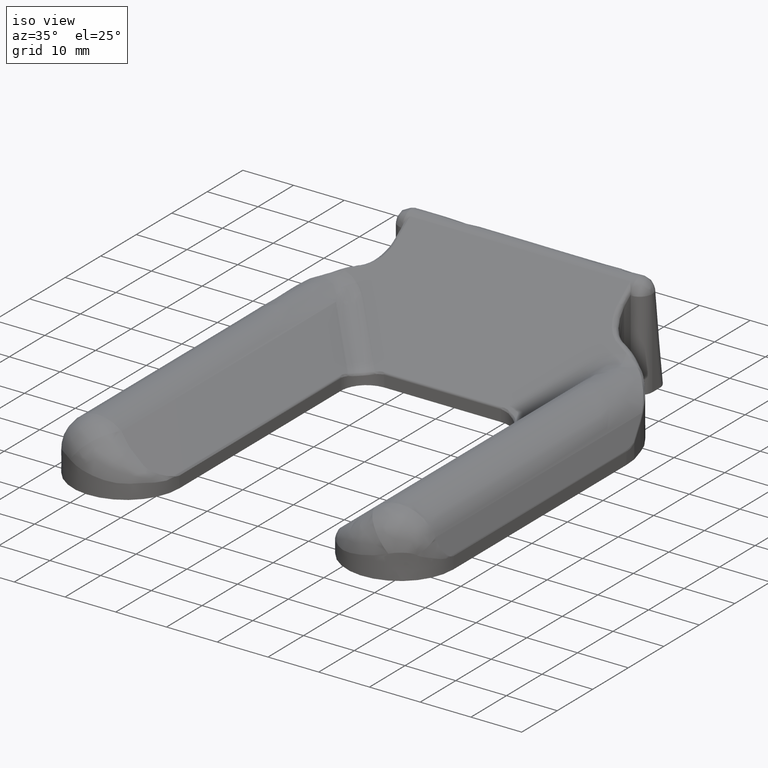
[diagram: clean part render]
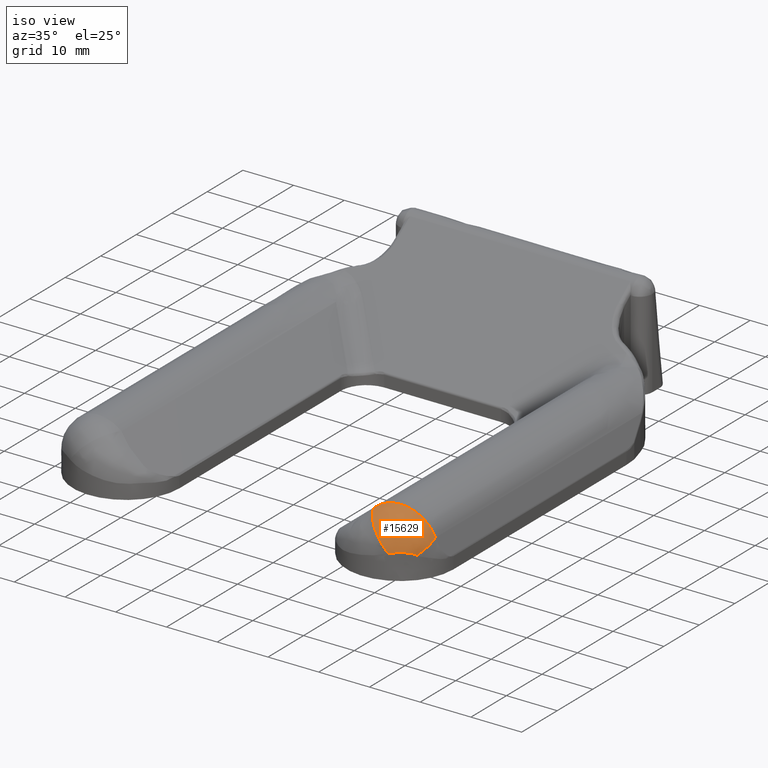
[diagram: same view with one face highlighted and labeled with its STEP entity id]
A machine part, iso view. The second image highlights one B-rep face of the part: STEP entity #15629.
In plain terms, the highlighted face is a freeform B-spline surface patch.
Its self-contained STEP definition (entity closure, byte-faithful):
#3473=CARTESIAN_POINT('',(25.080732248594199,-82.600092383999495,9.442037946899319));
#3474=VERTEX_POINT('',#3473);
#5366=CARTESIAN_POINT('',(36.049751690212993,-81.510677089458994,6.425722288404909));
#5367=VERTEX_POINT('',#5366);
#5368=CARTESIAN_POINT('',(25.080732248594199,-82.600092383999495,9.442037946899319));
#5369=CARTESIAN_POINT('',(25.182320122897568,-82.593547884013191,9.521577560484030));
#5370=CARTESIAN_POINT('',(25.384716749942530,-82.580509076654423,9.680046763786057));
#5371=CARTESIAN_POINT('',(25.703063567011171,-82.560187455576809,9.895228548401855));
#5372=CARTESIAN_POINT('',(26.029213233021050,-82.539399902357843,10.092369264373099));
#5373=CARTESIAN_POINT('',(26.363149967252010,-82.518087573348083,10.269812423810940));
#5374=CARTESIAN_POINT('',(26.703353049343491,-82.496266053718671,10.427865619635019));
#5375=CARTESIAN_POINT('',(27.048727414326450,-82.473931217265203,10.566408458425551));
#5376=CARTESIAN_POINT('',(27.398097274953599,-82.451084157627946,10.685521896696550));
#5377=CARTESIAN_POINT('',(27.750344701535980,-82.427724586323563,10.785317248896710));
#5378=CARTESIAN_POINT('',(28.104377001783231,-82.403852580798315,10.865976975678000));
#5379=CARTESIAN_POINT('',(28.459139021498810,-82.379468121786957,10.927739280755400));
#5380=CARTESIAN_POINT('',(28.813613150887381,-82.354571215148468,10.970897498268529));
#5381=CARTESIAN_POINT('',(29.166822187289650,-82.329161861979017,10.995795510114670));
#5382=CARTESIAN_POINT('',(29.517831073073420,-82.303240057822833,11.002824176570780));
#5383=CARTESIAN_POINT('',(29.865748501938722,-82.276805824938350,10.992417525625060));
#5384=CARTESIAN_POINT('',(30.209728408965191,-82.249859085633616,10.965048914167919));
#5385=CARTESIAN_POINT('',(30.548970375873569,-82.222400131043202,10.921227653469399));
#5386=CARTESIAN_POINT('',(30.882722827121640,-82.194427893465502,10.861494048914089));
#5387=CARTESIAN_POINT('',(31.210274727381609,-82.165946311106183,10.786420563111029));
#5388=CARTESIAN_POINT('',(31.530988495168440,-82.136940883203039,10.696590748811900));
#5389=CARTESIAN_POINT('',(32.142543404329622,-82.079384702587049,10.493650768536220));
#5390=CARTESIAN_POINT('',(33.087708335252678,-81.979605839486169,10.054898004739940));
#5391=CARTESIAN_POINT('',(34.132487522371150,-81.844695805593517,9.287119899657858));
#5392=CARTESIAN_POINT('',(34.934048499169563,-81.721271483170568,8.430709830904899));
#5393=CARTESIAN_POINT('',(35.458074606296542,-81.630504080305016,7.677236260675863));
#5394=CARTESIAN_POINT('',(35.814510808137669,-81.560123038082267,7.017604604244530));
#5395=CARTESIAN_POINT('',(35.978254400266202,-81.525705887181388,6.605614305902336));
#5396=CARTESIAN_POINT('',(36.049751547844721,-81.510677945406115,6.425722160316780));
#5397=B_SPLINE_CURVE_WITH_KNOTS('',3,(#5368,#5369,#5370,#5371,#5372,#5373,#5374,#5375,#5376,#5377,#5378,#5379,#5380,#5381,#5382,#5383,#5384,#5385,#5386,#5387,#5388,#5389,#5390,#5391,#5392,#5393,#5394,#5395,#5396),.UNSPECIFIED.,.F.,.U.,(4,1,1,1,1,1,1,1,1,1,1,1,1,1,1,1,1,1,1,1,1,1,1,1,1,1,4),(0.0,0.029091245626322,0.057959377846734,0.086604483049567,0.115026649698732,0.143225968398196,0.171202531958985,0.198956435468765,0.226487776364203,0.253796654506159,0.280883172257898,0.307747434566452,0.334389549047251,0.360809626072233,0.387007778861562,0.412984123579142,0.438738779432121,0.464271868774578,0.489583517215587,0.514673853731909,0.539543010785521,0.635266412127378,0.749073333609461,0.830821818625757,0.899896579095204,0.956290375550654,0.999999451779539),.UNSPECIFIED.);
#5398=EDGE_CURVE('',#3474,#5367,#5397,.T.);
#15087=CARTESIAN_POINT('',(31.327212082865199,-88.066882229331796,4.777433992414270));
#15088=VERTEX_POINT('',#15087);
#15121=CARTESIAN_POINT('',(31.327212082865199,-88.066882229331796,4.777433992414270));
#15122=CARTESIAN_POINT('',(27.098168053854952,-89.979728021997062,11.074196544766897));
#15123=CARTESIAN_POINT('',(25.080732248595751,-82.600092383999495,9.442037946900580));
#15131=(BOUNDED_CURVE()B_SPLINE_CURVE(2,(#15121,#15122,#15123),.UNSPECIFIED.,.F.,.U.)CURVE()GEOMETRIC_REPRESENTATION_ITEM()QUASI_UNIFORM_CURVE()RATIONAL_B_SPLINE_CURVE((1.0,0.608602499896895,1.0))REPRESENTATION_ITEM(''));
#15132=EDGE_CURVE('',#15088,#3474,#15131,.T.);
#15138=CARTESIAN_POINT('',(24.900612459717205,-82.519813354139387,9.295451953826367));
#15139=CARTESIAN_POINT('',(24.906343791707954,-82.542148250405702,9.300377142170817));
#15140=CARTESIAN_POINT('',(24.917943058089485,-82.587351947385955,9.310345864635284));
#15141=CARTESIAN_POINT('',(25.245591795394834,-83.863921556800875,9.591756304334298));
#15142=CARTESIAN_POINT('',(26.256465998461444,-85.620741494030170,9.326241974182622));
#15143=CARTESIAN_POINT('',(27.129028593746938,-86.704691539668005,8.872309277901612));
#15144=CARTESIAN_POINT('',(27.746885970810045,-87.237855135687155,8.429078643711426));
#15145=CARTESIAN_POINT('',(27.997942411733451,-87.433217376370351,8.237919989575905));
#15146=CARTESIAN_POINT('',(28.251456204499480,-87.609662467793200,8.034065409587020));
#15147=CARTESIAN_POINT('',(28.505956187262505,-87.766398620935163,7.818818582623349));
#15148=CARTESIAN_POINT('',(29.133971165285256,-88.103816182685122,7.262019134863515));
#15149=CARTESIAN_POINT('',(30.529035584538967,-88.423025891063588,5.801518943823793));
#15150=CARTESIAN_POINT('',(31.289295590297797,-88.084711308596710,4.739388026980684));
#15151=CARTESIAN_POINT('',(31.316777096993029,-88.072447295727855,4.700976154892571));
#15152=CARTESIAN_POINT('',(31.330035548427499,-88.066525601721864,4.682441780559144));
#15153=CARTESIAN_POINT('',(24.926536007827455,-82.518223028676857,9.316574797961843));
#15154=CARTESIAN_POINT('',(24.932323747256174,-82.540533796772280,9.321496876014255));
#15155=CARTESIAN_POINT('',(24.944037239234149,-82.585688376888484,9.331459038142391));
#15156=CARTESIAN_POINT('',(25.274841400586439,-83.860714752606128,9.612691816390507));
#15157=CARTESIAN_POINT('',(26.286337075867710,-85.615514239918397,9.345014520458989));
#15158=CARTESIAN_POINT('',(27.157594969120581,-86.698325984398522,8.888968146025690));
#15159=CARTESIAN_POINT('',(27.773597939936334,-87.231130401079824,8.444091913809148));
#15160=CARTESIAN_POINT('',(28.023820774487469,-87.426392051559333,8.252248422559283));
#15161=CARTESIAN_POINT('',(28.276416349230072,-87.602780919511403,8.047684667938992));
#15162=CARTESIAN_POINT('',(28.529921604187113,-87.759506109392504,7.831706938108007));
#15163=CARTESIAN_POINT('',(29.155318631080725,-88.097013246527510,7.273046000146896));
#15164=CARTESIAN_POINT('',(30.543192223179808,-88.417417075402653,5.807836693715148));
#15165=CARTESIAN_POINT('',(31.297898691709563,-88.080743931143118,4.742349278995343));
#15166=CARTESIAN_POINT('',(31.325184994803330,-88.068542746454980,4.703811288991287));
#15167=CARTESIAN_POINT('',(31.338349303315930,-88.062651247206176,4.685215942058669));
#15168=CARTESIAN_POINT('',(24.952459909691019,-82.516632676219757,9.337697590692768));
#15169=CARTESIAN_POINT('',(24.958303764145001,-82.538919322948516,9.342616801900917));
#15170=CARTESIAN_POINT('',(24.970130533963655,-82.584024801477014,9.352573436702834));
#15171=CARTESIAN_POINT('',(25.304084523599496,-83.857508699302784,9.633622415907402));
#15172=CARTESIAN_POINT('',(26.316194791226337,-85.610289319599985,9.363778946578773));
#15173=CARTESIAN_POINT('',(27.186146446304232,-86.691963801529596,8.905618352542428));
#15174=CARTESIAN_POINT('',(27.800295943618881,-87.224409147261838,8.459097365635410));
#15175=CARTESIAN_POINT('',(28.049685797823233,-87.419570092609789,8.266569310527935));
#15176=CARTESIAN_POINT('',(28.301363796227744,-87.595902581123397,8.061296924766799));
#15177=CARTESIAN_POINT('',(28.553875274239015,-87.752617065989384,7.844588953868757));
#15178=CARTESIAN_POINT('',(29.176656285799897,-88.090212598924438,7.284068027207704));
#15179=CARTESIAN_POINT('',(30.557348496681332,-88.411816158968833,5.814152999458318));
#15180=CARTESIAN_POINT('',(31.306495750633015,-88.076762908831185,4.745310555699231));
#15181=CARTESIAN_POINT('',(31.333587422378077,-88.064625664894791,4.706646470169397));
#15182=CARTESIAN_POINT('',(31.346657963455090,-88.058765117118767,4.687990160561355));
#15183=CARTESIAN_POINT('',(25.004315887926566,-82.513451858635989,9.379937382865082));
#15184=CARTESIAN_POINT('',(25.010272422835481,-82.535690280534595,9.384849257303420));
#15185=CARTESIAN_POINT('',(25.022328188460911,-82.580697590561300,9.394789273819249));
#15186=CARTESIAN_POINT('',(25.362545529485303,-83.851098789041203,9.675473423597872));
#15187=CARTESIAN_POINT('',(26.375871020814532,-85.599846347265597,9.401282378998493));
#15188=CARTESIAN_POINT('',(27.243204560192623,-86.679249236996540,8.938892772612963));
#15189=CARTESIAN_POINT('',(27.853650179413918,-87.210977198230509,8.489084802286156));
#15190=CARTESIAN_POINT('',(28.101375714956447,-87.405936501286646,8.295188803793257));
#15191=CARTESIAN_POINT('',(28.351220692267244,-87.582156041687924,8.088500683393821));
#15192=CARTESIAN_POINT('',(28.601747240484290,-87.738849180796706,7.870334078877840));
#15193=CARTESIAN_POINT('',(29.219302091124909,-88.076617728797828,7.306097376725970));
#15194=CARTESIAN_POINT('',(30.585660955420444,-88.400639304915899,5.826781123833682));
#15195=CARTESIAN_POINT('',(31.323671967676923,-88.068761972151492,4.751233175882634));
#15196=CARTESIAN_POINT('',(31.350375213134690,-88.056753764340812,4.712316968013173));
#15197=CARTESIAN_POINT('',(31.363258517363441,-88.050955474159863,4.693538764677878));
#15198=CARTESIAN_POINT('',(25.030234434991804,-82.511861455307084,9.401066510117639));
#15199=CARTESIAN_POINT('',(25.036245425252044,-82.534075777410365,9.405977612683310));
#15200=CARTESIAN_POINT('',(25.048411962686551,-82.579034166723972,9.415913721962095));
#15201=CARTESIAN_POINT('',(25.391772982230819,-83.847895026299639,9.696386192330113));
#15202=CARTESIAN_POINT('',(26.405688204381089,-85.594628495382054,9.420023060814188));
#15203=CARTESIAN_POINT('',(27.271711493015854,-86.672897308911772,8.955517073222271));
#15204=CARTESIAN_POINT('',(27.880306357182736,-87.204266486682158,8.504066899199568));
#15205=CARTESIAN_POINT('',(28.127200831022634,-87.399124854491745,8.309487169596171));
#15206=CARTESIAN_POINT('',(28.376130210349579,-87.575287638895972,8.102092022708700));
#15207=CARTESIAN_POINT('',(28.625665843646232,-87.731970742744011,7.883197074384456));
#15208=CARTESIAN_POINT('',(29.240611075987029,-88.069825558750978,7.317104961192531));
#15209=CARTESIAN_POINT('',(30.599810728281643,-88.395050784188030,5.833093192308833));
#15210=CARTESIAN_POINT('',(31.332247822151633,-88.064709178715248,4.754194687479560));
#15211=CARTESIAN_POINT('',(31.358771163979338,-88.052819897289311,4.715152269228239));
#15212=CARTESIAN_POINT('',(31.371561514684842,-88.047054196204613,4.696313133496052));
#15213=CARTESIAN_POINT('',(25.704960686607894,-82.470498409837418,9.949923860290511));
#15214=CARTESIAN_POINT('',(25.712454598265555,-82.492088167558848,9.954600970197852));
#15215=CARTESIAN_POINT('',(25.727270642583949,-82.535776021735415,9.964513891785817));
#15216=CARTESIAN_POINT('',(26.148815339738924,-83.764853058274966,10.238820540072219));
#15217=CARTESIAN_POINT('',(27.176393333480039,-85.459760652863750,9.904304394395343));
#15218=CARTESIAN_POINT('',(28.007694385433826,-86.508879795505010,9.384724605663370));
#15219=CARTESIAN_POINT('',(28.568524153247587,-87.031009319063941,8.890873515738740));
#15220=CARTESIAN_POINT('',(28.793993874244304,-87.223250874475582,8.678683839568771));
#15221=CARTESIAN_POINT('',(29.019377051111945,-87.397933761430068,8.453076648120701));
#15222=CARTESIAN_POINT('',(29.243436747324715,-87.554293054947308,8.215436865248433));
#15223=CARTESIAN_POINT('',(29.791304862106010,-87.894163556091470,7.601588912210776));
#15224=CARTESIAN_POINT('',(30.966935328583670,-88.250968493480570,5.996681471153560));
#15225=CARTESIAN_POINT('',(31.554980253888992,-87.959522734792543,4.831194597045232));
#15226=CARTESIAN_POINT('',(31.576465701098670,-87.949229003637470,4.788883972641268));
#15227=CARTESIAN_POINT('',(31.586819478705813,-87.944228733471775,4.768464411492672));
#15228=CARTESIAN_POINT('',(26.341700089324657,-82.432299648648979,10.288317702259910));
#15229=CARTESIAN_POINT('',(26.350258273422156,-82.453201873952054,10.292699932756673));
#15230=CARTESIAN_POINT('',(26.367543397482564,-82.495490744346540,10.301947649774389));
#15231=CARTESIAN_POINT('',(26.855414023578845,-83.680874215224179,10.546234712204670));
#15232=CARTESIAN_POINT('',(27.885628625982235,-85.319477582734365,10.154747966638524));
#15233=CARTESIAN_POINT('',(28.679516466065806,-86.337207762991781,9.595816925367451));
#15234=CARTESIAN_POINT('',(29.194334593951112,-86.849501179526371,9.078323374408544));
#15235=CARTESIAN_POINT('',(29.399450587920086,-87.039008506245764,8.856811715656351));
#15236=CARTESIAN_POINT('',(29.602678425093440,-87.212183395156828,8.622023258463669));
#15237=CARTESIAN_POINT('',(29.802982518622954,-87.368303147561107,8.375323201817851));
#15238=CARTESIAN_POINT('',(30.288846376978427,-87.710948677923113,7.739087618823327));
#15239=CARTESIAN_POINT('',(31.296584157372585,-88.100065203656357,6.081811882382737));
#15240=CARTESIAN_POINT('',(31.760238142386235,-87.861699266424580,4.881029514731285));
#15241=CARTESIAN_POINT('',(31.777017502119964,-87.852783309902136,4.837279238298924));
#15242=CARTESIAN_POINT('',(31.785140487359559,-87.848525684404876,4.816160837916826));
#15243=CARTESIAN_POINT('',(27.573072294257400,-82.356788987029987,10.766808608553383));
#15244=CARTESIAN_POINT('',(27.583396928879459,-82.376359602797464,10.769699531987960));
#15245=CARTESIAN_POINT('',(27.604400304187962,-82.415934294415436,10.774463523134905));
#15246=CARTESIAN_POINT('',(28.184916098167552,-83.516679147753720,10.938069495865538));
#15247=CARTESIAN_POINT('',(29.187326604658089,-85.044699009177265,10.438980938170898));
#15248=CARTESIAN_POINT('',(29.897294056690257,-85.999796896948951,9.818714215311216));
#15249=CARTESIAN_POINT('',(30.324182516023601,-86.491510195168473,9.272681608617944));
#15250=CARTESIAN_POINT('',(30.491157675483802,-86.675052547584798,9.040675203403270));
#15251=CARTESIAN_POINT('',(30.653571752770347,-86.844635512480082,8.796252960999727));
#15252=CARTESIAN_POINT('',(30.810693202798323,-86.999583995568656,8.540699740227069));
#15253=CARTESIAN_POINT('',(31.185015894235939,-87.345728098060405,7.883652723331699));
#15254=CARTESIAN_POINT('',(31.901242443934301,-87.797283849653127,6.184549688379558));
#15255=CARTESIAN_POINT('',(32.151267186751276,-87.652924748852300,4.958496495432777));
#15256=CARTESIAN_POINT('',(32.160421722416757,-87.647579942582794,4.913472600126536));
#15257=CARTESIAN_POINT('',(32.164843357961729,-87.644999194113041,4.891730447858027));
#15258=CARTESIAN_POINT('',(28.169544575758472,-82.319479966557594,10.899383986966404));
#15259=CARTESIAN_POINT('',(28.180417696388403,-82.338381429513674,10.901421906203819));
#15260=CARTESIAN_POINT('',(28.202307893018798,-82.376600156544313,10.906323393968949));
#15261=CARTESIAN_POINT('',(28.811155126561804,-83.434995313506377,11.018793701857868));
#15262=CARTESIAN_POINT('',(29.785263401758566,-84.907623063905319,10.467981144511205));
#15263=CARTESIAN_POINT('',(30.449561149777097,-85.831201596988819,9.826342603357359));
#15264=CARTESIAN_POINT('',(30.834455366469655,-86.312196761639768,9.275507076273327));
#15265=CARTESIAN_POINT('',(30.983556022685004,-86.492553907241131,9.042376904269384));
#15266=CARTESIAN_POINT('',(31.127142705307786,-86.660102701992713,8.797561036836267));
#15267=CARTESIAN_POINT('',(31.264615913713232,-86.814201648428508,8.542274311546610));
#15268=CARTESIAN_POINT('',(31.588739516379970,-87.161391279254062,7.887013925633023));
#15269=CARTESIAN_POINT('',(32.177666457318892,-87.642030150170072,6.199519551715391));
#15270=CARTESIAN_POINT('',(32.337872694719472,-87.544343468713762,4.985151188318971));
#15271=CARTESIAN_POINT('',(32.343813423136147,-87.540800367306630,4.940368292458351));
#15272=CARTESIAN_POINT('',(32.346679745173979,-87.539083524441651,4.918737658284358));
#15273=CARTESIAN_POINT('',(29.876295450907971,-82.206823771490775,11.080653070488735));
#15274=CARTESIAN_POINT('',(29.888073403357204,-82.223722868132342,11.079774562022374));
#15275=CARTESIAN_POINT('',(29.911969992532487,-82.257868195500464,11.077980446000346));
#15276=CARTESIAN_POINT('',(30.562282304859860,-83.191536125826914,11.034632103979419));
#15277=CARTESIAN_POINT('',(31.423963314613115,-84.503456637336384,10.359709810007551));
#15278=CARTESIAN_POINT('',(31.949850580576669,-85.335800944983390,9.677649519527227));
#15279=CARTESIAN_POINT('',(32.218553505534018,-85.784748692763301,9.130638838110260));
#15280=CARTESIAN_POINT('',(32.318890608416993,-85.955333142600821,8.901605888547069));
#15281=CARTESIAN_POINT('',(32.411724088394962,-86.116304141283990,8.663276952016084));
#15282=CARTESIAN_POINT('',(32.496753468277348,-86.267114237713045,8.416629823124302));
#15283=CARTESIAN_POINT('',(32.687801668311032,-86.614987172306314,7.786579752699677));
#15284=CARTESIAN_POINT('',(32.945491450964759,-87.173725321400624,6.183476501407204));
#15285=CARTESIAN_POINT('',(32.876623173174728,-87.211541423396426,5.039535542860214));
#15286=CARTESIAN_POINT('',(32.874040225592246,-87.212933455830637,4.996806377185763));
#15287=CARTESIAN_POINT('',(32.872792761748848,-87.213608058794023,4.976153674746530));
#15288=CARTESIAN_POINT('',(30.900542963451059,-82.130040178464711,10.920701176634639));
#15289=CARTESIAN_POINT('',(30.911784138129235,-82.145796110317718,10.918209286311477));
#15290=CARTESIAN_POINT('',(30.934387034441787,-82.177615157641739,10.913009042969529));
#15291=CARTESIAN_POINT('',(31.550849565590568,-83.040149906462773,10.776309369901313));
#15292=CARTESIAN_POINT('',(32.299346110051950,-84.257094491964509,10.046789394195699));
#15293=CARTESIAN_POINT('',(32.728392668292287,-85.033762467904680,9.368559511383896));
#15294=CARTESIAN_POINT('',(32.930678285405712,-85.461100104994429,8.846255510200324));
#15295=CARTESIAN_POINT('',(33.004203142002737,-85.624688768520315,8.629075103417055));
#15296=CARTESIAN_POINT('',(33.070121206103693,-85.780406829155226,8.404391203432144));
#15297=CARTESIAN_POINT('',(33.128261825469963,-85.927786473958335,8.173001985774606));
#15298=CARTESIAN_POINT('',(33.253036438098604,-86.272060236759202,7.583778755486196));
#15299=CARTESIAN_POINT('',(33.362738102533996,-86.867502352059915,6.096665789267175));
#15300=CARTESIAN_POINT('',(33.206677297284038,-86.978178887540039,5.042045019448043));
#15301=CARTESIAN_POINT('',(33.200799138533256,-86.982354052023538,5.002308361295848));
#15302=CARTESIAN_POINT('',(33.197956457605528,-86.984372537682233,4.983093033111985));
#15303=CARTESIAN_POINT('',(32.703706122779984,-81.965477402794050,10.286851513976728));
#15304=CARTESIAN_POINT('',(32.713101129941727,-81.979172497765049,10.281829900130992));
#15305=CARTESIAN_POINT('',(32.732466485946588,-82.006813130954399,10.272613358204566));
#15306=CARTESIAN_POINT('',(33.237389281722386,-82.743961675777101,10.002681983369250));
#15307=CARTESIAN_POINT('',(33.753231119532892,-83.794572687101024,9.246577494904175));
#15308=CARTESIAN_POINT('',(34.009601505446206,-84.472957292489255,8.617578150660123));
#15309=CARTESIAN_POINT('',(34.103042173692877,-84.859721158524266,8.162822206353553));
#15310=CARTESIAN_POINT('',(34.133433203121484,-85.009684393027925,7.975825920687654));
#15311=CARTESIAN_POINT('',(34.156773186188602,-85.154541487249872,7.784211051952750));
#15312=CARTESIAN_POINT('',(34.173040976396464,-85.293954616442846,7.588478671137906));
#15313=CARTESIAN_POINT('',(34.195948741821148,-85.626458984039701,7.092621003055822));
#15314=CARTESIAN_POINT('',(34.088006521381338,-86.267789478111951,5.858013809357732));
#15315=CARTESIAN_POINT('',(33.816164367060210,-86.496252264940253,4.991410554839074));
#15316=CARTESIAN_POINT('',(33.805754636388194,-86.504999022795687,4.958227677347592));
#15317=CARTESIAN_POINT('',(33.800716525436592,-86.509232482895897,4.942167477431657));
#15318=CARTESIAN_POINT('',(33.485988839732826,-81.877453734102090,9.817159927698192));
#15319=CARTESIAN_POINT('',(33.493863660867760,-81.890282704240633,9.811302559961995));
#15320=CARTESIAN_POINT('',(33.509517575321091,-81.916156444878041,9.799145043654525));
#15321=CARTESIAN_POINT('',(33.933623529200794,-82.601251511061136,9.490603307308584));
#15322=CARTESIAN_POINT('',(34.332745452248346,-83.581107670498184,8.760340409645739));
#15323=CARTESIAN_POINT('',(34.510682782657788,-84.216668863724436,8.174845214464359));
#15324=CARTESIAN_POINT('',(34.560411563697983,-84.584277858859338,7.762386223760120));
#15325=CARTESIAN_POINT('',(34.573960565571305,-84.727544321224215,7.593550513082849));
#15326=CARTESIAN_POINT('',(34.581167932638706,-84.866737041109459,7.421247570303904));
#15327=CARTESIAN_POINT('',(34.582043739356024,-85.001577587646679,7.245854508704506));
#15328=CARTESIAN_POINT('',(34.568558328412344,-85.325780941351425,6.802500742820515));
#15329=CARTESIAN_POINT('',(34.392382919628865,-85.976749010537333,5.705182602066199));
#15330=CARTESIAN_POINT('',(34.096020342357917,-86.247716833886486,4.938572898666857));
#15331=CARTESIAN_POINT('',(34.084587485209866,-86.258171486870339,4.908997868043240));
#15332=CARTESIAN_POINT('',(34.079051854120237,-86.263233437737625,4.894678015018792));
#15333=CARTESIAN_POINT('',(34.533153842315478,-81.732794014361559,8.870607331087836));
#15334=CARTESIAN_POINT('',(34.538848942519948,-81.744464127718985,8.864649674721866));
#15335=CARTESIAN_POINT('',(34.551202650098460,-81.767991331232508,8.853691176605008));
#15336=CARTESIAN_POINT('',(34.850513804011541,-82.384467458221124,8.537094388208939));
#15337=CARTESIAN_POINT('',(35.076155770076440,-83.270694082188285,7.888547005620120));
#15338=CARTESIAN_POINT('',(35.149964631645311,-83.849055458791284,7.396087933112608));
#15339=CARTESIAN_POINT('',(35.144396565284971,-84.189953193034611,7.059488146155715));
#15340=CARTESIAN_POINT('',(35.136971194026067,-84.323682704006501,6.922497438768590));
#15341=CARTESIAN_POINT('',(35.124363219630666,-84.454571856083390,6.783373217144225));
#15342=CARTESIAN_POINT('',(35.106612299820952,-84.582419146800149,6.642347027971836));
#15343=CARTESIAN_POINT('',(35.049687018408122,-84.892951068360262,6.286760213971377));
#15344=CARTESIAN_POINT('',(34.797776875798228,-85.547661627188575,5.412363782584182));
#15345=CARTESIAN_POINT('',(34.483256200622328,-85.867766365091668,4.803873169518424));
#15346=CARTESIAN_POINT('',(34.470996071068448,-85.880243518548752,4.780154796581117));
#15347=CARTESIAN_POINT('',(34.465056583262871,-85.886288320423390,4.768664088437930));
#15348=CARTESIAN_POINT('',(34.860765050482165,-81.682488047779870,8.512691273793742));
#15349=CARTESIAN_POINT('',(34.865619353956966,-81.693791062430904,8.506780765915735));
#15350=CARTESIAN_POINT('',(34.875367159223764,-81.716572472885375,8.494842248035155));
#15351=CARTESIAN_POINT('',(35.130976545193803,-82.311574131754256,8.183774719469618));
#15352=CARTESIAN_POINT('',(35.301753992154985,-83.168659023617550,7.573568608791584));
#15353=CARTESIAN_POINT('',(35.342975642079303,-83.729200118283146,7.116416786212507));
#15354=CARTESIAN_POINT('',(35.320825496318811,-84.061583095393303,6.807052302848091));
#15355=CARTESIAN_POINT('',(35.307162247335469,-84.192238242666988,6.681372712826055));
#15356=CARTESIAN_POINT('',(35.288727434505020,-84.320410425311564,6.553945923367492));
#15357=CARTESIAN_POINT('',(35.265559126361872,-84.445919085433630,6.424960858769354));
#15358=CARTESIAN_POINT('',(35.196140664832932,-84.751718146031024,6.100030614781058));
#15359=CARTESIAN_POINT('',(34.923784870627919,-85.405838119652756,5.303052791149356));
#15360=CARTESIAN_POINT('',(34.606933825223201,-85.739823318620097,4.749718854395517));
#15361=CARTESIAN_POINT('',(34.594540170958844,-85.752883785046393,4.728078813098579));
#15362=CARTESIAN_POINT('',(34.588535083501846,-85.759212412024610,4.717593106313220));
#15363=CARTESIAN_POINT('',(35.325227783604674,-81.604227376282623,7.863897463101767));
#15364=CARTESIAN_POINT('',(35.328872829786334,-81.615009816020603,7.858418607270444));
#15365=CARTESIAN_POINT('',(35.336512353941302,-81.636738951268526,7.847588796637345));
#15366=CARTESIAN_POINT('',(35.524966742398249,-82.201519300207892,7.559403110932736));
#15367=CARTESIAN_POINT('',(35.615121200657299,-83.017485660983056,7.025017765560254));
#15368=CARTESIAN_POINT('',(35.610443152371154,-83.552901743074514,6.632741927878233));
#15369=CARTESIAN_POINT('',(35.565240688732793,-83.873068934745788,6.370717871398046));
#15370=CARTESIAN_POINT('',(35.542947709954348,-83.999270383536185,6.264537052851518));
#15371=CARTESIAN_POINT('',(35.516485687666218,-84.123461631470633,6.157116875287298));
#15372=CARTESIAN_POINT('',(35.485912675066146,-84.245499639550133,6.048595371589760));
#15373=CARTESIAN_POINT('',(35.399522043106892,-84.544109619780912,5.775548566031763));
#15374=CARTESIAN_POINT('',(35.100923902851903,-85.195777574344291,5.108173692131119));
#15375=CARTESIAN_POINT('',(34.783614183929508,-85.547939702212176,4.646201179388194));
#15376=CARTESIAN_POINT('',(34.771139807808972,-85.561773932429972,4.628047875327253));
#15377=CARTESIAN_POINT('',(34.765094297572141,-85.568479444149403,4.619249385469010));
#15378=CARTESIAN_POINT('',(35.551869884015019,-81.563905984555987,7.514476235846583));
#15379=CARTESIAN_POINT('',(35.554778104511641,-81.574438903418326,7.509253987388573));
#15380=CARTESIAN_POINT('',(35.560532131612540,-81.595659488204831,7.498668232058452));
#15381=CARTESIAN_POINT('',(35.717115389607386,-82.146063470884556,7.228491328793500));
#15382=CARTESIAN_POINT('',(35.765887615491451,-82.942342599139792,6.736894786105143));
#15383=CARTESIAN_POINT('',(35.738803649852230,-83.465734894342916,6.379843880060104));
#15384=CARTESIAN_POINT('',(35.682418720509574,-83.779947867748916,6.142740452238553));
#15385=CARTESIAN_POINT('',(35.655950472758462,-83.903962519395108,6.046770293457207));
#15386=CARTESIAN_POINT('',(35.625650941317481,-84.026190521233787,5.949787202667767));
#15387=CARTESIAN_POINT('',(35.591536619568501,-84.146486556779678,5.851897628779186));
#15388=CARTESIAN_POINT('',(35.497114268425001,-84.441455017891130,5.605744908081713));
#15389=CARTESIAN_POINT('',(35.186565631703779,-85.091181710310266,5.005128555067518));
#15390=CARTESIAN_POINT('',(34.870181491683852,-85.451448517023451,4.589970879257373));
#15391=CARTESIAN_POINT('',(34.857708534725141,-85.465629523923766,4.573618884182698));
#15392=CARTESIAN_POINT('',(34.851663244362555,-85.472504220497328,4.565692458347872));
#15393=CARTESIAN_POINT('',(35.804297964250665,-81.516793608715503,7.017645584757986));
#15394=CARTESIAN_POINT('',(35.806570551099099,-81.527055916994726,7.013036905910475));
#15395=CARTESIAN_POINT('',(35.811373650042412,-81.547728716466267,7.003862702792509));
#15396=CARTESIAN_POINT('',(35.925391015146992,-82.082515980827168,6.761893958817232));
#15397=CARTESIAN_POINT('',(35.929766946946700,-82.857285817010606,6.335696303212655));
#15398=CARTESIAN_POINT('',(35.877819784102265,-83.367467682299207,6.029006307069392));
#15399=CARTESIAN_POINT('',(35.809161632290909,-83.675049969617376,5.826565553091931));
#15400=CARTESIAN_POINT('',(35.778172009182214,-83.796614137201885,5.744736981388073));
#15401=CARTESIAN_POINT('',(35.743592149970695,-83.916576909180648,5.662108249446935));
#15402=CARTESIAN_POINT('',(35.705634803705635,-84.034885452174876,5.578798482561934));
#15403=CARTESIAN_POINT('',(35.602318353130975,-84.325482236203399,5.369416646765643));
#15404=CARTESIAN_POINT('',(35.280286723420332,-84.972783023345983,4.859564299231963));
#15405=CARTESIAN_POINT('',(34.965697236562654,-85.341185484517069,4.507422216062174));
#15406=CARTESIAN_POINT('',(34.953258656259173,-85.355718338201527,4.493517284441605));
#15407=CARTESIAN_POINT('',(34.947230267197021,-85.362765781062478,4.486775972315447));
#15408=CARTESIAN_POINT('',(35.923393735145638,-81.493458932743053,6.739289351449105));
#15409=CARTESIAN_POINT('',(35.925204826775648,-81.503591827517923,6.734988675072382));
#15410=CARTESIAN_POINT('',(35.928872203526815,-81.524003122367517,6.726326208187127));
#15411=CARTESIAN_POINT('',(36.026461962582580,-82.051327092586803,6.504111300129234));
#15412=CARTESIAN_POINT('',(36.007943157894246,-82.815847721885191,6.114606098985054));
#15413=CARTESIAN_POINT('',(35.943777494308904,-83.319569443757700,5.835993564298414));
#15414=CARTESIAN_POINT('',(35.869476767978696,-83.623993904462523,5.652669973957620));
#15415=CARTESIAN_POINT('',(35.836234679093579,-83.744335464229849,5.578575124708125));
#15416=CARTESIAN_POINT('',(35.799741255170616,-83.863232422209592,5.503830101886268));
#15417=CARTESIAN_POINT('',(35.759917378541985,-83.980540340542404,5.428477489188196));
#15418=CARTESIAN_POINT('',(35.652654347908701,-84.269075124639784,5.239207690072999));
#15419=CARTESIAN_POINT('',(35.325298473757833,-84.915000119187411,4.778687691711388));
#15420=CARTESIAN_POINT('',(35.011678660538308,-85.286943876718524,4.460768603991046));
#15421=CARTESIAN_POINT('',(34.999279954965651,-85.301648504616907,4.448199709206365));
#15422=CARTESIAN_POINT('',(34.993266991144615,-85.308776919209151,4.442105648011921));
#15423=CARTESIAN_POINT('',(35.983519768415022,-81.481876260220304,6.592958441080693));
#15424=CARTESIAN_POINT('',(35.985033767949623,-81.491945845209628,6.588812546075475));
#15425=CARTESIAN_POINT('',(35.988121860353623,-81.512228749956421,6.580473227429318));
#15426=CARTESIAN_POINT('',(36.075290945185579,-82.035922761488422,6.368010558242232));
#15427=CARTESIAN_POINT('',(36.046055630040783,-82.795417981555886,5.998395586163018));
#15428=CARTESIAN_POINT('',(35.975832973012260,-83.295986119264853,5.734583407047235));
#15429=CARTESIAN_POINT('',(35.898707818598140,-83.598806872063207,5.561293562970421));
#15430=CARTESIAN_POINT('',(35.864478943037362,-83.718586424760275,5.491278798910243));
#15431=CARTESIAN_POINT('',(35.827030090651768,-83.836951361105861,5.420657220315056));
#15432=CARTESIAN_POINT('',(35.786387328548173,-83.953786872040610,5.349493182024375));
#15433=CARTESIAN_POINT('',(35.677273039768650,-84.241338259166767,5.170750109426150));
#15434=CARTESIAN_POINT('',(35.347272987956025,-84.886479176619346,4.735996447858286));
#15435=CARTESIAN_POINT('',(35.034256887456792,-85.260155160090818,4.435954362944969));
#15436=CARTESIAN_POINT('',(35.021872474405399,-85.274935431525392,4.424085063217838));
#15437=CARTESIAN_POINT('',(35.015873826378204,-85.282107145009817,4.418329986010250));
#15438=CARTESIAN_POINT('',(36.013687294180187,-81.476110815937417,6.517846971189154));
#15439=CARTESIAN_POINT('',(36.015183752182566,-81.486149037152813,6.513830086701126));
#15440=CARTESIAN_POINT('',(36.018058088246434,-81.506368278045557,6.505690043588912));
#15441=CARTESIAN_POINT('',(36.099133795242530,-82.028270409768552,6.298047998088265));
#15442=CARTESIAN_POINT('',(36.064888613246978,-82.785285882254598,5.938808142543202));
#15443=CARTESIAN_POINT('',(35.991636536441938,-83.284291607014652,5.682594823949460));
#15444=CARTESIAN_POINT('',(35.913104932252729,-83.586312006413067,5.514444879619751));
#15445=CARTESIAN_POINT('',(35.878389134220562,-83.705806526729276,5.446522563226927));
#15446=CARTESIAN_POINT('',(35.840475952471877,-83.823908405057509,5.378014033195062));
#15447=CARTESIAN_POINT('',(35.799447770162139,-83.940521005911634,5.308994539367889));
#15448=CARTESIAN_POINT('',(35.689420898795539,-84.227581822468196,5.135636699339197));
#15449=CARTESIAN_POINT('',(35.358125833818690,-84.872317228181117,4.714060027802292));
#15450=CARTESIAN_POINT('',(35.045446890411540,-85.246857108210776,4.423157543337455));
#15451=CARTESIAN_POINT('',(35.033079188483683,-85.261681811000258,4.411646376168241));
#15452=CARTESIAN_POINT('',(35.027081958382333,-85.268869716466810,4.406064836525800));
#15453=CARTESIAN_POINT('',(36.030959241508860,-81.472824271866003,6.474365362540137));
#15454=CARTESIAN_POINT('',(36.032459990758319,-81.482844762243062,6.470427498655248));
#15455=CARTESIAN_POINT('',(36.035306142654989,-81.503027985332707,6.462434972735117));
#15456=CARTESIAN_POINT('',(36.112571000571485,-82.023912043498342,6.257503469192901));
#15457=CARTESIAN_POINT('',(36.075592223706479,-82.779521991976665,5.904327859656437));
#15458=CARTESIAN_POINT('',(36.000598169044530,-83.277636949339112,5.652511725809476));
#15459=CARTESIAN_POINT('',(35.921273165568472,-83.579202549658916,5.487336954578093));
#15460=CARTESIAN_POINT('',(35.886271596461221,-83.698530895555464,5.420623020074876));
#15461=CARTESIAN_POINT('',(35.848106108700392,-83.816484158577595,5.353339918753376));
#15462=CARTESIAN_POINT('',(35.806867605291210,-83.932978500889803,5.285559250866042));
#15463=CARTESIAN_POINT('',(35.696315406931156,-84.219753548746667,5.115313881369289));
#15464=CARTESIAN_POINT('',(35.364287233015347,-84.864252911794068,4.701352312936440));
#15465=CARTESIAN_POINT('',(35.051815356754012,-85.239289260066897,4.415731180384283));
#15466=CARTESIAN_POINT('',(35.039452459727613,-85.254135002135044,4.404427093923936));
#15467=CARTESIAN_POINT('',(35.033456103970472,-85.261332058737665,4.398945903210136));
#15468=CARTESIAN_POINT('',(36.039575048482916,-81.471183775805159,6.452422797490349));
#15469=CARTESIAN_POINT('',(36.041084271193171,-81.481195416138235,6.448527441284849));
#15470=CARTESIAN_POINT('',(36.044014708289517,-81.501360897375747,6.440641496647562));
#15471=CARTESIAN_POINT('',(36.119210020011920,-82.021737727455715,6.237034573443472));
#15472=CARTESIAN_POINT('',(36.080925697612344,-82.776647985425257,5.886941190606406));
#15473=CARTESIAN_POINT('',(36.005056881869869,-83.274318876112929,5.637342048633281));
#15474=CARTESIAN_POINT('',(35.925337966710693,-83.575657705476573,5.473667685366300));
#15475=CARTESIAN_POINT('',(35.890193437762768,-83.694902655171418,5.407562867694884));
#15476=CARTESIAN_POINT('',(35.851905414969160,-83.812783316614315,5.340897845288916));
#15477=CARTESIAN_POINT('',(35.810548986290556,-83.929210602254500,5.273740114170065));
#15478=CARTESIAN_POINT('',(35.699750925751957,-84.215852460814460,5.105064747114612));
#15479=CARTESIAN_POINT('',(35.367352176857146,-84.860228284686130,4.694939802630210));
#15480=CARTESIAN_POINT('',(35.054994007980397,-85.235518394243996,4.411979612189436));
#15481=CARTESIAN_POINT('',(35.042628827032637,-85.250370703617079,4.400779897372051));
#15482=CARTESIAN_POINT('',(35.036632802060694,-85.257572183202200,4.395349284376638));
#15483=CARTESIAN_POINT('',(36.046613505729638,-81.469839763362415,6.434340790371781));
#15484=CARTESIAN_POINT('',(36.048131180036812,-81.479844172854342,6.430480864773757));
#15485=CARTESIAN_POINT('',(36.051205533559838,-81.500004873250958,6.422709114130602));
#15486=CARTESIAN_POINT('',(36.124661947912230,-82.019956970256189,6.220182682595747));
#15487=CARTESIAN_POINT('',(36.085297723463739,-82.774292740748905,5.872627843350766));
#15488=CARTESIAN_POINT('',(36.008704330566694,-83.271602087475074,5.624850962969719));
#15489=CARTESIAN_POINT('',(35.928662939451115,-83.572755279937439,5.462411938230010));
#15490=CARTESIAN_POINT('',(35.893401794447037,-83.691932250376254,5.396808590258432));
#15491=CARTESIAN_POINT('',(35.855013247338782,-83.809753065299375,5.330652447532517));
#15492=CARTESIAN_POINT('',(35.813560372880083,-83.926125360615742,5.264007535849294));
#15493=CARTESIAN_POINT('',(35.702561332085693,-84.212658127520086,5.096624512394787));
#15494=CARTESIAN_POINT('',(35.369596055565282,-84.856771080811342,4.689631223106364));
#15495=CARTESIAN_POINT('',(35.057604066337966,-85.232436459122397,4.408887685485241));
#15496=CARTESIAN_POINT('',(35.045228333613345,-85.247287171956160,4.397773695719624));
#15497=CARTESIAN_POINT('',(35.039232551990992,-85.254492234169419,4.392384721608419));
#15498=CARTESIAN_POINT('',(36.052100037831153,-81.468790811400225,6.420225916800239));
#15499=CARTESIAN_POINT('',(36.053622607929206,-81.478789576793460,6.416393127223034));
#15500=CARTESIAN_POINT('',(36.056607745131309,-81.498929023271785,6.408642383335209));
#15501=CARTESIAN_POINT('',(36.128923633577564,-82.018567345489203,6.207034512177534));
#15502=CARTESIAN_POINT('',(36.088689422024387,-82.772458657420898,5.861450329035476));
#15503=CARTESIAN_POINT('',(36.011550461316610,-83.269482258878185,5.615104620249278));
#15504=CARTESIAN_POINT('',(35.931257250306018,-83.570490590500583,5.453629426301284));
#15505=CARTESIAN_POINT('',(35.895904443587696,-83.689613893223594,5.388417369204748));
#15506=CARTESIAN_POINT('',(35.857438386126113,-83.807388761373034,5.322658259452738));
#15507=CARTESIAN_POINT('',(35.815910400333607,-83.923718313949138,5.256413409062242));
#15508=CARTESIAN_POINT('',(35.704754584086736,-84.210165787326105,5.090038699018177));
#15509=CARTESIAN_POINT('',(35.371818720711204,-84.854361647148721,4.685535403091791));
#15510=CARTESIAN_POINT('',(35.059623249414564,-85.230016825479098,4.406474204813575));
#15511=CARTESIAN_POINT('',(35.047257152693774,-85.244880581672447,4.395427462871551));
#15512=CARTESIAN_POINT('',(35.041261448652882,-85.252088337161425,4.390070981030073));
#15513=CARTESIAN_POINT('',(36.063027269139162,-81.466692892670835,6.391979294256164));
#15514=CARTESIAN_POINT('',(36.064546501198180,-81.476680364730996,6.388196390995311));
#15515=CARTESIAN_POINT('',(36.067528264336573,-81.496796917360612,6.380547661052558));
#15516=CARTESIAN_POINT('',(36.137491708182992,-82.015788623181948,6.180758183340843));
#15517=CARTESIAN_POINT('',(36.095486536426115,-82.768787132020904,5.839109397394973));
#15518=CARTESIAN_POINT('',(36.017241881723102,-83.265243971387164,5.595618535840911));
#15519=CARTESIAN_POINT('',(35.936443957916282,-83.565962566545821,5.436069998441430));
#15520=CARTESIAN_POINT('',(35.900909503079980,-83.684979654588673,5.371640330978067));
#15521=CARTESIAN_POINT('',(35.862285119247694,-83.802660520382915,5.306674635906192));
#15522=CARTESIAN_POINT('',(35.820618248621862,-83.918911300697829,5.241230738020158));
#15523=CARTESIAN_POINT('',(35.709136540045613,-84.205180380656429,5.076870465814451));
#15524=CARTESIAN_POINT('',(35.375736715470168,-84.849221910695292,4.677292574994084));
#15525=CARTESIAN_POINT('',(35.063676803486302,-85.225189557252008,4.401647626439654));
#15526=CARTESIAN_POINT('',(35.051313223611942,-85.240066015427814,4.390734953573062));
#15527=CARTESIAN_POINT('',(35.045318103714457,-85.247279488415430,4.385443442589047));
#15528=CARTESIAN_POINT('',(36.071157697650570,-81.465119449241897,6.370770501665214));
#15529=CARTESIAN_POINT('',(36.072659257500106,-81.475098446883521,6.367019846526214));
#15530=CARTESIAN_POINT('',(36.075599431106987,-81.495197814065250,6.359434295289320));
#15531=CARTESIAN_POINT('',(36.143969974465584,-82.013705047466232,6.161073464262683));
#15532=CARTESIAN_POINT('',(36.100576375405957,-82.766034127103438,5.822357026701573));
#15533=CARTESIAN_POINT('',(36.021510018377320,-83.262066469851248,5.581009859819020));
#15534=CARTESIAN_POINT('',(35.940332314106278,-83.562567741491733,5.422905319173718));
#15535=CARTESIAN_POINT('',(35.904662889433766,-83.681505744406536,5.359062382845566));
#15536=CARTESIAN_POINT('',(35.865917891899542,-83.799115443223570,5.294691032908014));
#15537=CARTESIAN_POINT('',(35.824152204712583,-83.915309910158228,5.229848257169209));
#15538=CARTESIAN_POINT('',(35.712420533494317,-84.201441648689993,5.066997393660001));
#15539=CARTESIAN_POINT('',(35.378676603765527,-84.845369333709513,4.671111635683872));
#15540=CARTESIAN_POINT('',(35.066713504321065,-85.221566199415406,4.398027681118347));
#15541=CARTESIAN_POINT('',(35.054352969830347,-85.236453098165015,4.387215534537991));
#15542=CARTESIAN_POINT('',(35.048358856693071,-85.243671309093656,4.381972739699624));
#15543=CARTESIAN_POINT('',(36.087334864088447,-81.461972421022878,6.328319399836297));
#15544=CARTESIAN_POINT('',(36.088788323738669,-81.471934483740327,6.324628877865956));
#15545=CARTESIAN_POINT('',(36.091626760986195,-81.491999524098887,6.317163131908472));
#15546=CARTESIAN_POINT('',(36.156975842121781,-82.009538861954752,6.121730698497088));
#15547=CARTESIAN_POINT('',(36.110745212246961,-82.760529563476311,5.788862661116889));
#15548=CARTESIAN_POINT('',(36.030043912233992,-83.255714365829760,5.551805858034818));
#15549=CARTESIAN_POINT('',(35.948105556399170,-83.555781072396513,5.396587553685214));
#15550=CARTESIAN_POINT('',(35.912168332636995,-83.674561849328398,5.333917800484526));
#15551=CARTESIAN_POINT('',(35.873181418119472,-83.792029847986001,5.270733839045852));
#15552=CARTESIAN_POINT('',(35.831209805258915,-83.908105467702967,5.207092134500843));
#15553=CARTESIAN_POINT('',(35.718988055345555,-84.193968247650375,5.047258931366259));
#15554=CARTESIAN_POINT('',(35.384555712586973,-84.837666298936611,4.658752087993467));
#15555=CARTESIAN_POINT('',(35.072784248842630,-85.214316695193602,4.390787466207576));
#15556=CARTESIAN_POINT('',(35.060430001126704,-85.229224527156177,4.380176313114900));
#15557=CARTESIAN_POINT('',(35.054438350245334,-85.236452531019410,4.375030923754852));
#15558=CARTESIAN_POINT('',(36.098010830799858,-81.459874384493773,6.299977303110871));
#15559=CARTESIAN_POINT('',(36.099418429228614,-81.469825170999187,6.296322006093347));
#15560=CARTESIAN_POINT('',(36.102170675730378,-81.489867364466051,6.288929469275681));
#15561=CARTESIAN_POINT('',(36.165707847916558,-82.006762331337882,6.095531871569924));
#15562=CARTESIAN_POINT('',(36.117512298762591,-82.756860443159866,5.766540089740523));
#15563=CARTESIAN_POINT('',(36.035732102225253,-83.251482000424730,5.532347159408169));
#15564=CARTESIAN_POINT('',(35.953284803766479,-83.551258855438533,5.379051359754643));
#15565=CARTESIAN_POINT('',(35.917172887859927,-83.669936575088627,5.317163866312314));
#15566=CARTESIAN_POINT('',(35.878021194887850,-83.787309701794698,5.254769789074287));
#15567=CARTESIAN_POINT('',(35.835911796098742,-83.903304188183228,5.191928809646608));
#15568=CARTESIAN_POINT('',(35.723364548806487,-84.188988249273237,5.034105837920555));
#15569=CARTESIAN_POINT('',(35.388475467394514,-84.832533382846975,4.650514344452049));
#15570=CARTESIAN_POINT('',(35.076827801955147,-85.209480455610986,4.385960539675554));
#15571=CARTESIAN_POINT('',(35.064478012461862,-85.224402383579516,4.375483335022520));
#15572=CARTESIAN_POINT('',(35.058488456344918,-85.231637252093080,4.370402861017781));
#15573=CARTESIAN_POINT('',(36.108635486579566,-81.457776394046363,6.271614981580266));
#15574=CARTESIAN_POINT('',(36.109998895728495,-81.467715919008754,6.267995485032811));
#15575=CARTESIAN_POINT('',(36.112670924011098,-81.487735291945540,6.260678291719128));
#15576=CARTESIAN_POINT('',(36.174456676274801,-82.003986379661086,6.069345927626030));
#15577=CARTESIAN_POINT('',(36.124275508293877,-82.753192501959148,5.744225325339752));
#15578=CARTESIAN_POINT('',(36.041418299952348,-83.247251448338247,5.512896975622112));
#15579=CARTESIAN_POINT('',(35.958463017332953,-83.546738963496551,5.361522937191340));
#15580=CARTESIAN_POINT('',(35.922177481314378,-83.665314545857456,5.300417275268949));
#15581=CARTESIAN_POINT('',(35.882860616534302,-83.782592742714456,5.238812483669104));
#15582=CARTESIAN_POINT('',(35.840612021448173,-83.898504985812536,5.176771664280510));
#15583=CARTESIAN_POINT('',(35.727739547092135,-84.184010148065582,5.020957684117685));
#15584=CARTESIAN_POINT('',(35.392393632447117,-84.827401397015819,4.642278127606638));
#15585=CARTESIAN_POINT('',(35.080870132679379,-85.204643138940327,4.381133605043466));
#15586=CARTESIAN_POINT('',(35.068524611600914,-85.219578941598911,4.370790307337154));
#15587=CARTESIAN_POINT('',(35.062537111199923,-85.226820609583740,4.365774730347742));
#15595=(BOUNDED_SURFACE()B_SPLINE_SURFACE(2,3,((#15138,#15153,#15168,#15183,#15198,#15213,#15228,#15243,#15258,#15273,#15288,#15303,#15318,#15333,#15348,#15363,#15378,#15393,#15408,#15423,#15438,#15453,#15468,#15483,#15498,#15513,#15528,#15543,#15558,#15573),(#15139,#15154,#15169,#15184,#15199,#15214,#15229,#15244,#15259,#15274,#15289,#15304,#15319,#15334,#15349,#15364,#15379,#15394,#15409,#15424,#15439,#15454,#15469,#15484,#15499,#15514,#15529,#15544,#15559,#15574),(#15140,#15155,#15170,#15185,#15200,#15215,#15230,#15245,#15260,#15275,#15290,#15305,#15320,#15335,#15350,#15365,#15380,#15395,#15410,#15425,#15440,#15455,#15470,#15485,#15500,#15515,#15530,#15545,#15560,#15575),(#15141,#15156,#15171,#15186,#15201,#15216,#15231,#15246,#15261,#15276,#15291,#15306,#15321,#15336,#15351,#15366,#15381,#15396,#15411,#15426,#15441,#15456,#15471,#15486,#15501,#15516,#15531,#15546,#15561,#15576),(#15142,#15157,#15172,#15187,#15202,#15217,#15232,#15247,#15262,#15277,#15292,#15307,#15322,#15337,#15352,#15367,#15382,#15397,#15412,#15427,#15442,#15457,#15472,#15487,#15502,#15517,#15532,#15547,#15562,#15577),(#15143,#15158,#15173,#15188,#15203,#15218,#15233,#15248,#15263,#15278,#15293,#15308,#15323,#15338,#15353,#15368,#15383,#15398,#15413,#15428,#15443,#15458,#15473,#15488,#15503,#15518,#15533,#15548,#15563,#15578),(#15144,#15159,#15174,#15189,#15204,#15219,#15234,#15249,#15264,#15279,#15294,#15309,#15324,#15339,#15354,#15369,#15384,#15399,#15414,#15429,#15444,#15459,#15474,#15489,#15504,#15519,#15534,#15549,#15564,#15579),(#15145,#15160,#15175,#15190,#15205,#15220,#15235,#15250,#15265,#15280,#15295,#15310,#15325,#15340,#15355,#15370,#15385,#15400,#15415,#15430,#15445,#15460,#15475,#15490,#15505,#15520,#15535,#15550,#15565,#15580),(#15146,#15161,#15176,#15191,#15206,#15221,#15236,#15251,#15266,#15281,#15296,#15311,#15326,#15341,#15356,#15371,#15386,#15401,#15416,#15431,#15446,#15461,#15476,#15491,#15506,#15521,#15536,#15551,#15566,#15581),(#15147,#15162,#15177,#15192,#15207,#15222,#15237,#15252,#15267,#15282,#15297,#15312,#15327,#15342,#15357,#15372,#15387,#15402,#15417,#15432,#15447,#15462,#15477,#15492,#15507,#15522,#15537,#15552,#15567,#15582),(#15148,#15163,#15178,#15193,#15208,#15223,#15238,#15253,#15268,#15283,#15298,#15313,#15328,#15343,#15358,#15373,#15388,#15403,#15418,#15433,#15448,#15463,#15478,#15493,#15508,#15523,#15538,#15553,#15568,#15583),(#15149,#15164,#15179,#15194,#15209,#15224,#15239,#15254,#15269,#15284,#15299,#15314,#15329,#15344,#15359,#15374,#15389,#15404,#15419,#15434,#15449,#15464,#15479,#15494,#15509,#15524,#15539,#15554,#15569,#15584),(#15150,#15165,#15180,#15195,#15210,#15225,#15240,#15255,#15270,#15285,#15300,#15315,#15330,#15345,#15360,#15375,#15390,#15405,#15420,#15435,#15450,#15465,#15480,#15495,#15510,#15525,#15540,#15555,#15570,#15585),(#15151,#15166,#15181,#15196,#15211,#15226,#15241,#15256,#15271,#15286,#15301,#15316,#15331,#15346,#15361,#15376,#15391,#15406,#15421,#15436,#15451,#15466,#15481,#15496,#15511,#15526,#15541,#15556,#15571,#15586),(#15152,#15167,#15182,#15197,#15212,#15227,#15242,#15257,#15272,#15287,#15302,#15317,#15332,#15347,#15362,#15377,#15392,#15407,#15422,#15437,#15452,#15467,#15482,#15497,#15512,#15527,#15542,#15557,#15572,#15587)),.UNSPECIFIED.,.F.,.F.,.U.)B_SPLINE_SURFACE_WITH_KNOTS((3,1,1,1,1,1,1,1,1,1,1,1,1,3),(4,2,2,2,2,2,2,2,1,1,1,1,1,1,2,1,1,2,4),(0.0,0.059545358070775,0.119803464599080,3.091596862735440,4.577493561803619,6.063390260871799,6.434864435638843,6.806338610405889,7.177812785172934,7.549286959939979,9.035183659008158,12.006977057144519,12.070007699430320,12.129466649675621),(0.0,0.100836797186948,0.201673594375857,2.722594293877648,5.243514993379439,10.285356392383040,15.327197791386631,17.848118490888410,19.108578840639321,19.738809015514779,20.053924102952500,20.211481646671370,20.290260418530799,20.329649804460519,20.369039190390229,20.394246850030161,20.419454509670079,20.469869828949928,20.570706626136939),.UNSPECIFIED.)GEOMETRIC_REPRESENTATION_ITEM()RATIONAL_B_SPLINE_SURFACE(((1.007940020991066,1.007931568536704,1.007923116082342,1.007906211173619,1.007897758719256,1.007677994841309,1.007425987961468,1.006878716363784,1.006583795415250,1.005681839092975,1.005062734638289,1.003903586126593,1.003360037862347,1.002604187999601,1.002361542211070,1.002011610312852,1.001839874498103,1.001647852869970,1.001554261772414,1.001508113091628,1.001485205710591,1.001472164230151,1.001465659765277,1.001460332955744,1.001456175601473,1.001447860892931,1.001441624861524,1.001429152290857,1.001420837074461,1.001412521858065),(1.005966825163280,1.005960473250932,1.005954121338583,1.005941417513887,1.005935065601538,1.005769915831986,1.005580535855076,1.005169268184136,1.004947638828386,1.004269830081283,1.003804580928532,1.002933495510074,1.002525025877032,1.001957014282886,1.001774669047476,1.001511699660107,1.001382642371463,1.001238340551112,1.001168008027233,1.001133327878393,1.001116113271813,1.001106312764517,1.001101424741585,1.001097421711719,1.001094297512664,1.001088049114554,1.001083362815971,1.001073989837160,1.001067741057404,1.001061492277648),(1.001996814667747,1.001994688982580,1.001992563297413,1.001988311927078,1.001986186241910,1.001930918411331,1.001867541874342,1.001729910002244,1.001655741120761,1.001428910534795,1.001273213609387,1.000981702446777,1.000845006945859,1.000654920283086,1.000593897941942,1.000505894503681,1.000462705122412,1.000414414116127,1.000390877141026,1.000379271332579,1.000373510416518,1.000370230649442,1.000368594858947,1.000367255233847,1.000366209711928,1.000364118668089,1.000362550385210,1.000359413691732,1.000357322520175,1.000355231348617),(0.901521621093009,0.901626455073210,0.901731289053412,0.901940957013817,0.902045790994020,0.904771475279606,0.907897062608405,0.914684754961163,0.918342596288028,0.929529367275468,0.937207987160745,0.951584657760579,0.958326170406571,0.967700814285208,0.970710298004474,0.975050428352123,0.977180430861665,0.979562033967618,0.980722824295214,0.981295196493928,0.981579311832171,0.981741062519443,0.981821736003460,0.981887803280620,0.981939366054778,0.982042491603093,0.982119835764330,0.982274530385602,0.982377662232716,0.982480794079829),(0.827662836912765,0.827846296378118,0.828029755843470,0.828396674774179,0.828580134239535,0.833350081739310,0.838819859564709,0.850698321182035,0.857099543504048,0.876676392732070,0.890113977531305,0.915273151081013,0.927070798211500,0.943476424999115,0.948743021507829,0.956338249616215,0.960065754007913,0.964233559443331,0.966264942516625,0.967266593864374,0.967763795706299,0.968046859409024,0.968188038006055,0.968303655741085,0.968393890595861,0.968574360305414,0.968709712587578,0.968980428174803,0.969160908907252,0.969341389639701),(0.803043242186017,0.803252910146420,0.803462578106823,0.803881914027633,0.804091581988040,0.809542950559211,0.815794125216810,0.829369509922326,0.836685192576055,0.859058734550937,0.874415974321491,0.903169315521158,0.916652340813142,0.935401628570417,0.941420596008947,0.950100856704246,0.954360861723329,0.959124067935235,0.961445648590429,0.962590392987855,0.963158623664342,0.963482125038885,0.963643472006920,0.963775606561240,0.963878732109555,0.964084983206187,0.964239671528660,0.964549060771204,0.964755324465431,0.964961588159658),(0.803043242186017,0.803252910146420,0.803462578106823,0.803881914027633,0.804091581988041,0.809542950559211,0.815794125216810,0.829369509922326,0.836685192576055,0.859058734550936,0.874415974321491,0.903169315521158,0.916652340813142,0.935401628570417,0.941420596008947,0.950100856704246,0.954360861723329,0.959124067935235,0.961445648590429,0.962590392987855,0.963158623664342,0.963482125038885,0.963643472006920,0.963775606561240,0.963878732109555,0.964084983206187,0.964239671528660,0.964549060771203,0.964755324465431,0.964961588159658),(0.804581966856439,0.804789996785901,0.804998026715363,0.805414086574292,0.805622116503759,0.811030896257968,0.817233233613554,0.830702560626058,0.837961089509054,0.860159838187257,0.875397099522104,0.903925805243649,0.917303494400540,0.935906303347211,0.941878247602628,0.950490693761245,0.954717417491115,0.959443411154491,0.961746854460816,0.962882655542638,0.963446446916964,0.963767420937019,0.963927507381865,0.964058609634980,0.964160929514949,0.964365569274888,0.964519049094843,0.964826021233928,0.965030673493045,0.965235325752161),(0.807659416197282,0.807864170064863,0.808068923932444,0.808478431667611,0.808683185535196,0.814006787655480,0.820111450407041,0.833368662033521,0.840512883375053,0.862362045459899,0.877359349923331,0.905438784688631,0.918605801575334,0.936915652900798,0.942793550789988,0.951270367875241,0.955430529026689,0.960082097593003,0.962349266201590,0.963467180652202,0.964022093422208,0.964338012733286,0.964495578131757,0.964624615782461,0.964725324325738,0.964926741412292,0.965077804227207,0.965379942159378,0.965581371548273,0.965782800937166),(0.812275590208547,0.812475429983306,0.812675269758066,0.813074949307588,0.813274789082351,0.818470624751748,0.824428775597272,0.837367814144717,0.844340574174052,0.865665356368861,0.880302725525171,0.907708253856104,0.920559262337527,0.938429677231179,0.944166505571028,0.952439879046235,0.956500196330048,0.961040127250771,0.963252883812752,0.964343968316550,0.964885563180075,0.965193900427687,0.965347684256595,0.965473625003682,0.965571916541920,0.965768499618397,0.965915936925754,0.966210823547553,0.966407418631114,0.966604013714674),(0.827662836912764,0.827846296378117,0.828029755843470,0.828396674774179,0.828580134239535,0.833350081739310,0.838819859564709,0.850698321182035,0.857099543504048,0.876676392732069,0.890113977531305,0.915273151081013,0.927070798211500,0.943476424999115,0.948743021507829,0.956338249616216,0.960065754007913,0.964233559443331,0.966264942516625,0.967266593864374,0.967763795706299,0.968046859409024,0.968188038006055,0.968303655741085,0.968393890595861,0.968574360305413,0.968709712587578,0.968980428174803,0.969160908907252,0.969341389639700),(0.901521621093008,0.901626455073210,0.901731289053411,0.901940957013817,0.902045790994020,0.904771475279606,0.907897062608405,0.914684754961163,0.918342596288028,0.929529367275468,0.937207987160746,0.951584657760579,0.958326170406571,0.967700814285208,0.970710298004474,0.975050428352123,0.977180430861664,0.979562033967618,0.980722824295214,0.981295196493928,0.981579311832171,0.981741062519443,0.981821736003460,0.981887803280620,0.981939366054778,0.982042491603093,0.982119835764330,0.982274530385601,0.982377662232716,0.982480794079828),(1.002088690108021,1.002086466617953,1.002084243127885,1.002079796147749,1.002077572657681,1.002019761898933,1.001953469344081,1.001809504891875,1.001731923425964,1.001494656137839,1.001331795441150,1.001026871558350,1.000883886560698,1.000685053820426,1.000621223780326,1.000529171215841,1.000483994647938,1.000433481724148,1.000408861789279,1.000396721985975,1.000390696004404,1.000387265331963,1.000385554277111,1.000384153014521,1.000383059387093,1.000380872132235,1.000379231691092,1.000375950675210,1.000373763286756,1.000371575898303),(1.006147712687791,1.006141168213792,1.006134623739793,1.006121534791794,1.006114990317796,1.005944833943865,1.005749712810766,1.005325977338462,1.005097629169202,1.004399272284187,1.003919918852323,1.003022426009369,1.002601573398992,1.002016342226872,1.001828469097258,1.001557527651013,1.001424557921025,1.001275881513124,1.001203416820833,1.001167685324568,1.001149948847901,1.001139851232937,1.001134815026952,1.001130690643077,1.001127471732241,1.001121033910571,1.001116205544318,1.001106548418597,1.001100110203711,1.001093671988826),(1.008118045159539,1.008109403191677,1.008100761223815,1.008083477288091,1.008074835320230,1.007850144089865,1.007592486933371,1.007032944893176,1.006731411486478,1.005809232292696,1.005176246822347,1.003991108902038,1.003435373676589,1.002662576812892,1.002414490633864,1.002056712870343,1.001881126546174,1.001684799577953,1.001589110063109,1.001541926677184,1.001518505686994,1.001505171801948,1.001498521499681,1.001493075257110,1.001488824690297,1.001480323556672,1.001473947706452,1.001461195486774,1.001452693833908,1.001444192181043)))REPRESENTATION_ITEM('')SURFACE());
#15596=CARTESIAN_POINT('',(35.062951270834553,-85.225980731770406,4.415838975241425));
#15597=VERTEX_POINT('',#15596);
#15598=CARTESIAN_POINT('',(35.062951270834553,-85.225980731770406,4.415838975241425));
#15599=CARTESIAN_POINT('',(35.464132132347167,-84.745054161626399,4.777024252374484));
#15600=CARTESIAN_POINT('',(35.772702869855401,-84.156173945091510,5.151805061637621));
#15601=CARTESIAN_POINT('',(36.114017878273707,-82.871122906028802,5.846984482977496));
#15602=CARTESIAN_POINT('',(36.145863846717283,-82.178334203586843,6.165553456542833));
#15603=CARTESIAN_POINT('',(36.049751690212993,-81.510677089458994,6.425722288404909));
#15604=B_SPLINE_CURVE_WITH_KNOTS('',3,(#15598,#15599,#15600,#15601,#15602,#15603),.UNSPECIFIED.,.F.,.U.,(4,2,4),(0.000000051250215,0.500000004893767,0.999999953643552),.UNSPECIFIED.);
#15605=EDGE_CURVE('',#15597,#5367,#15604,.T.);
#15606=ORIENTED_EDGE('',*,*,#15605,.T.);
#15607=ORIENTED_EDGE('',*,*,#5398,.F.);
#15608=ORIENTED_EDGE('',*,*,#15132,.F.);
#15609=CARTESIAN_POINT('',(35.062951270834553,-85.225980731770406,4.415838975241425));
#15610=CARTESIAN_POINT('',(35.036216776432617,-85.257814400557223,4.446005921659649));
#15611=CARTESIAN_POINT('',(34.980519568984093,-85.324134949871805,4.508854087288085));
#15612=CARTESIAN_POINT('',(34.884617537351872,-85.434726481011950,4.590360427763766));
#15613=CARTESIAN_POINT('',(34.775441120448278,-85.557096686245742,4.667440834893078));
#15614=CARTESIAN_POINT('',(34.651532080444703,-85.691404711360619,4.738695959797362));
#15615=CARTESIAN_POINT('',(34.512438937466321,-85.836756971803680,4.804556193395388));
#15616=CARTESIAN_POINT('',(34.287649830540452,-86.062433747477471,4.892243534525560));
#15617=CARTESIAN_POINT('',(33.959899241520283,-86.368708633569184,4.981654959739949));
#15618=CARTESIAN_POINT('',(33.491524451352191,-86.761247246760121,5.045970924602365));
#15619=CARTESIAN_POINT('',(32.967670883254620,-87.148368749065170,5.066516648755824));
#15620=CARTESIAN_POINT('',(32.408986355032887,-87.506833559222045,5.031100145726136));
#15621=CARTESIAN_POINT('',(31.861586492205319,-87.814920707410437,4.942853913316699));
#15622=CARTESIAN_POINT('',(31.502828997846411,-87.984077543328155,4.831797628991090));
#15623=CARTESIAN_POINT('',(31.327212082865199,-88.066882229331796,4.777433992414270));
#15624=B_SPLINE_CURVE_WITH_KNOTS('',3,(#15609,#15610,#15611,#15612,#15613,#15614,#15615,#15616,#15617,#15618,#15619,#15620,#15621,#15622,#15623),.UNSPECIFIED.,.F.,.U.,(4,1,1,1,1,1,1,1,1,1,1,1,4),(0.000000106747451,0.031593804310780,0.065820705862091,0.102921669564024,0.143085955497645,0.186462735106973,0.233170400417262,0.346391770480585,0.467399282912218,0.610898698642026,0.746747519446750,0.876029295428171,1.0),.UNSPECIFIED.);
#15625=EDGE_CURVE('',#15597,#15088,#15624,.T.);
#15626=ORIENTED_EDGE('',*,*,#15625,.F.);
#15627=EDGE_LOOP('',(#15606,#15607,#15608,#15626));
#15628=FACE_OUTER_BOUND('',#15627,.T.);
#15629=ADVANCED_FACE('',(#15628),#15595,.T.);